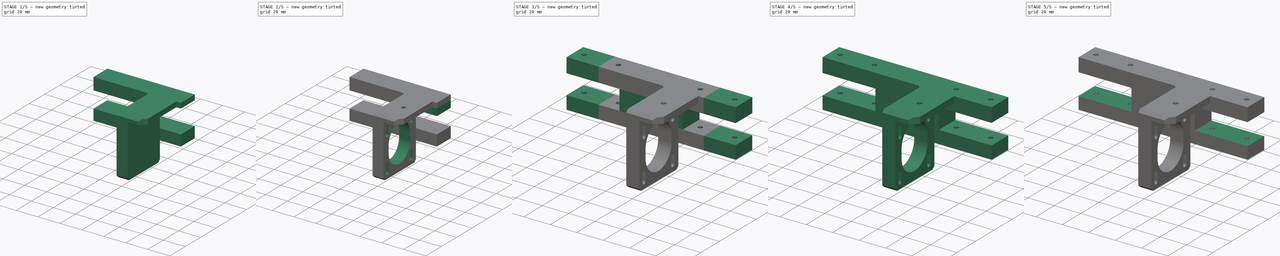
[diagram: build sequence overview — one tinted view per stage of 5, left to right]
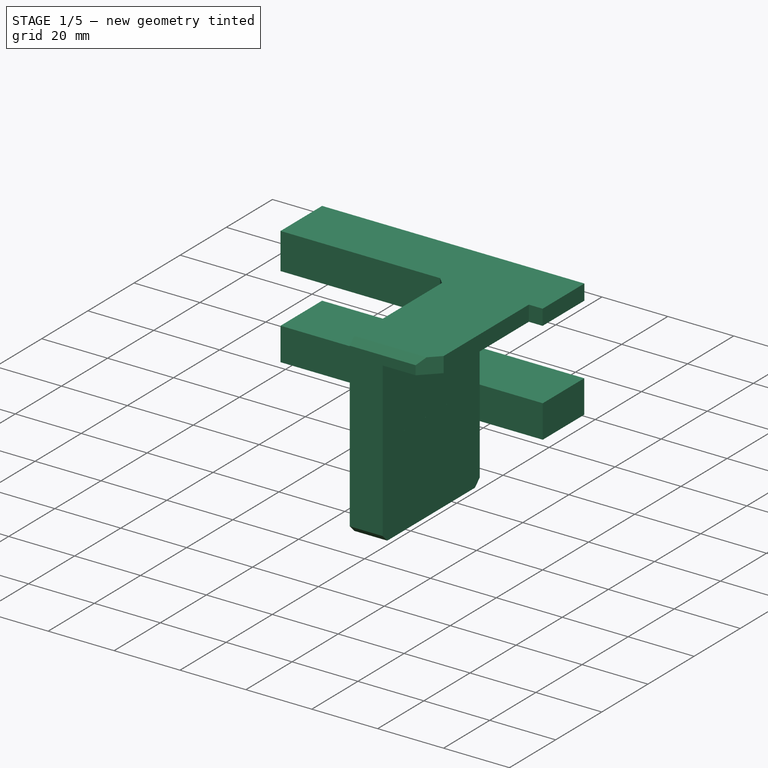
[diagram: stage 1 of 5 — iso view after this stage's code; geometry added in this stage tinted green]
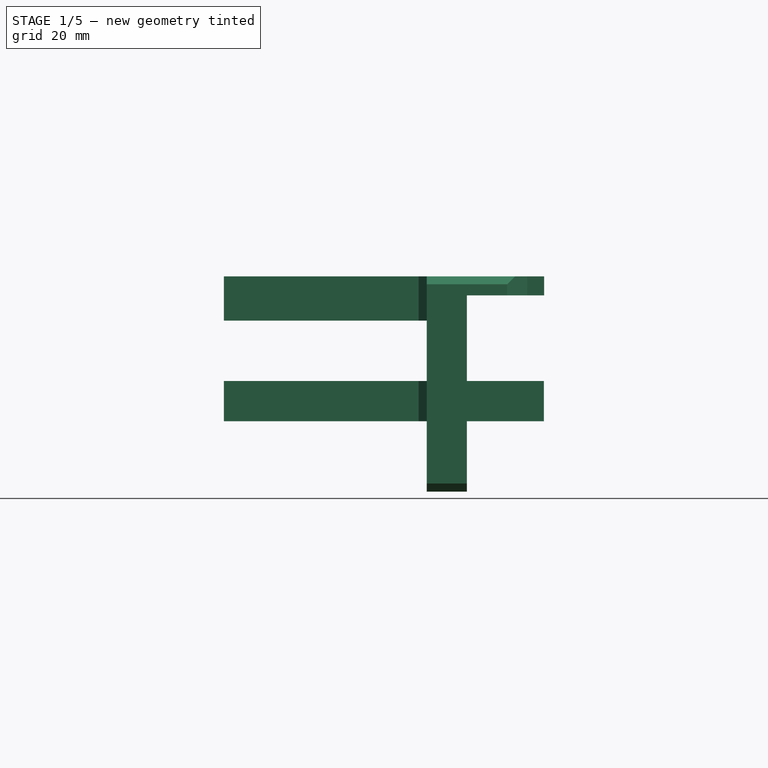
[diagram: stage 1 of 5 — front view after this stage's code; geometry added in this stage tinted green]
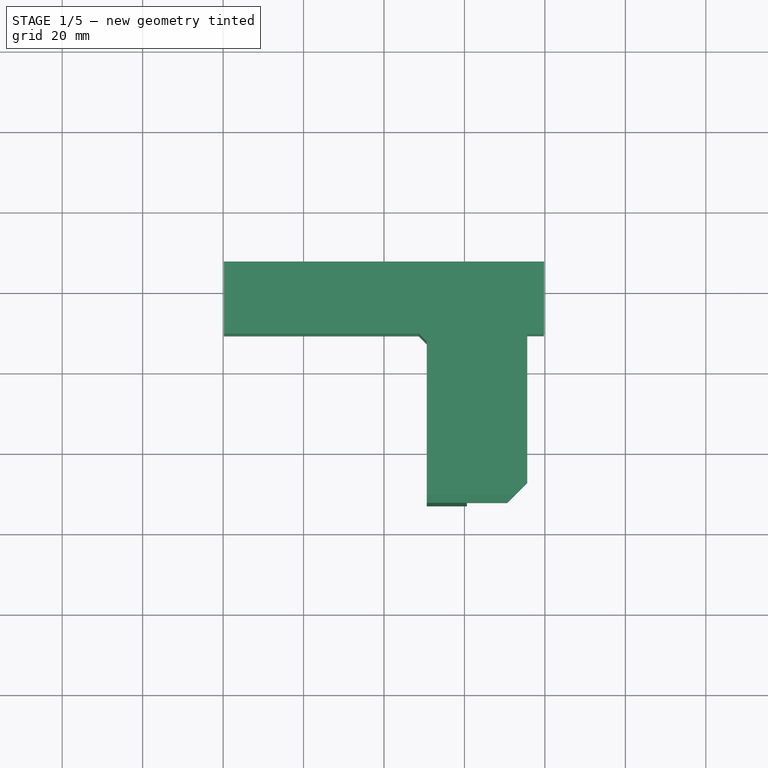
[diagram: stage 1 of 5 — top view after this stage's code; geometry added in this stage tinted green]
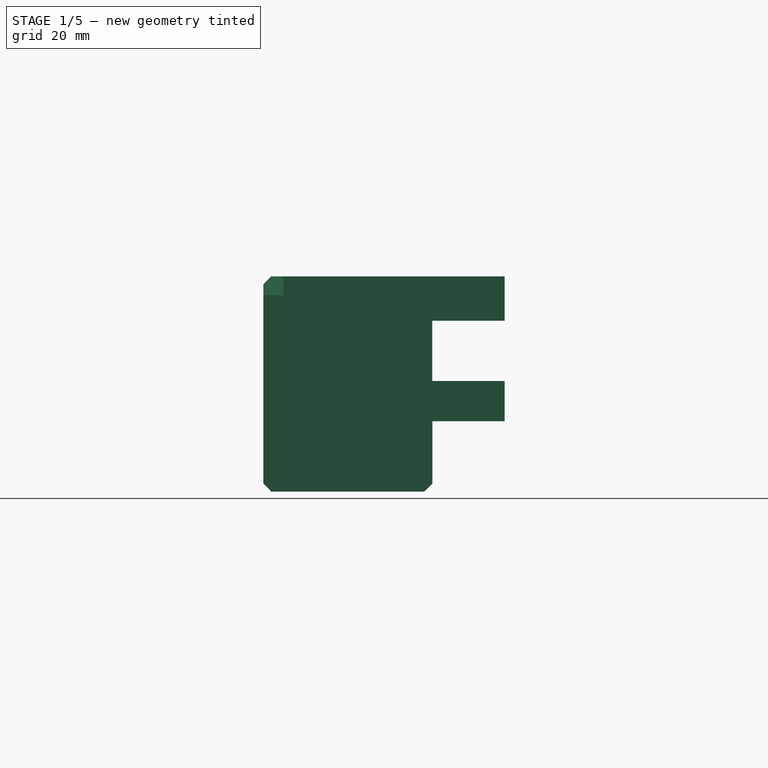
[diagram: stage 1 of 5 — right view after this stage's code; geometry added in this stage tinted green]
FCSTD DOCUMENT  (FreeCAD 2024.1R35694 (Git))
Label: Rear_Lower_brace
License: All rights reserved
LicenseURL: http://en.wikipedia.org/wiki/All_rights_reserved
objects: PartDesign::Pocket×22, PartDesign::Pad×13, Sketcher::SketchObject×8, PartDesign::Body×1
note: 79 computed .brp shape members not serialized (recipe doc carries the construction recipe); baked Part::Feature solids carry a one-line shape summary decoded from their .brp

FEATURE [Sketcher::SketchObject] Sketch
  AttachmentOffset = pos=(0,0,-164) rot=(0,0,1;0rad)
  FullyConstrained = false
  MapMode = 5
  Placement = pos=(0,0,-164) rot=(0,0,1;0rad)
  Support = -> [XY_Plane]
  sketch-geometry (10):
    g0: LineSegment StartX=-39.8001 StartY=187 StartZ=0 EndX=39.7995 EndY=187 EndZ=0
    g1: LineSegment StartX=39.7995 StartY=187 StartZ=0 EndX=39.7995 EndY=168.901 EndZ=0
    g2: LineSegment StartX=-39.8001 StartY=169 StartZ=0 EndX=-39.8001 EndY=187 EndZ=0
    g3: LineSegment StartX=8.61803 StartY=169 StartZ=0 EndX=-39.8001 EndY=169 EndZ=0
    g4: LineSegment StartX=39.7995 StartY=168.901 StartZ=0 EndX=35.6181 EndY=168.901 EndZ=0
    g5: LineSegment StartX=8.61803 StartY=169 StartZ=0 EndX=10.6181 EndY=167 EndZ=0
    g6: LineSegment StartX=10.6181 StartY=167 StartZ=0 EndX=10.6181 EndY=126.992 EndZ=0
    g7: LineSegment StartX=10.6181 StartY=126.992 StartZ=0 EndX=30.618 EndY=126.992 EndZ=0
    g8: LineSegment StartX=30.618 StartY=126.992 StartZ=0 EndX=35.6181 EndY=131.992 EndZ=0
    g9: LineSegment StartX=35.6181 StartY=131.992 StartZ=0 EndX=35.6181 EndY=168.901 EndZ=0
  constraints (18):
    c: Coincident(g0,g1)
    c: Coincident(g1,g4)
    c: Coincident(g3,g2)
    c: Coincident(g2,g0)
    c: Horizontal(g0)
    c: Vertical(g1)
    c: Vertical(g2)
    c: Horizontal(g3)
    c: Horizontal(g4)
    c: Coincident(g3,g5)
    c: Coincident(g5,g6)
    c: Vertical(g6)
    c: Coincident(g6,g7)
    c: Horizontal(g7)
    c: Coincident(g7,g8)
    c: Coincident(g8,g9)
    c: Coincident(g9,g4)
    c: Vertical(g9)
FEATURE [Sketcher::SketchObject] Sketch001
  FullyConstrained = false
  MapMode = 5
  Placement = pos=(0,0,0) rot=(1,0,0;1.5708rad)
  Support = -> [XZ_Plane]
  sketch-geometry (20):
    g0: LineSegment StartX=-104.456 StartY=-109.007 StartZ=0 EndX=119.045 EndY=-109.007 EndZ=0
    g1: LineSegment StartX=119.045 StartY=-109.007 StartZ=0 EndX=119.045 EndY=-262.207 EndZ=0
    g2: LineSegment StartX=119.045 StartY=-262.207 StartZ=0 EndX=-104.456 EndY=-262.207 EndZ=0
    g3: LineSegment StartX=-104.456 StartY=-262.207 StartZ=0 EndX=-104.456 EndY=-109.007 EndZ=0
    g4: LineSegment StartX=-39.8749 StartY=-163.95 StartZ=0 EndX=39.8 EndY=-163.95 EndZ=0
    g5: LineSegment StartX=10.6203 StartY=-175.003 StartZ=0 EndX=-39.8749 EndY=-175.003 EndZ=0
    g6: LineSegment StartX=-39.8749 StartY=-175.003 StartZ=0 EndX=-39.8749 EndY=-163.95 EndZ=0
    g7: LineSegment StartX=39.8 StartY=-163.95 StartZ=0 EndX=39.8 EndY=-175.004 EndZ=0
    g8: LineSegment StartX=39.8 StartY=-175.004 StartZ=0 EndX=20.6157 EndY=-175.004 EndZ=0
    g9: LineSegment StartX=20.6157 StartY=-175.004 StartZ=0 EndX=20.6157 EndY=-189.981 EndZ=0
    g10: LineSegment StartX=20.6157 StartY=-189.981 StartZ=0 EndX=39.7561 EndY=-189.981 EndZ=0
    g11: LineSegment StartX=39.7561 StartY=-189.981 StartZ=0 EndX=39.7561 EndY=-200.047 EndZ=0
    g12: LineSegment StartX=39.7561 StartY=-200.047 StartZ=0 EndX=20.6169 EndY=-200.047 EndZ=0
    g13: LineSegment StartX=20.6169 StartY=-200.047 StartZ=0 EndX=20.6169 EndY=-217.501 EndZ=0
    g14: LineSegment StartX=20.6169 StartY=-217.501 StartZ=0 EndX=10.6183 EndY=-217.501 EndZ=0
    g15: LineSegment StartX=10.6183 StartY=-217.501 StartZ=0 EndX=10.6183 EndY=-200 EndZ=0
    g16: LineSegment StartX=10.6183 StartY=-200 StartZ=0 EndX=-39.8 EndY=-200 EndZ=0
    g17: LineSegment StartX=-39.8 StartY=-200 StartZ=0 EndX=-39.8 EndY=-190 EndZ=0
    g18: LineSegment StartX=-39.8 StartY=-190 StartZ=0 EndX=10.6203 EndY=-190 EndZ=0
    g19: LineSegment StartX=10.6203 StartY=-175.003 StartZ=0 EndX=10.6203 EndY=-190 EndZ=0
  constraints (40):
    c: Coincident(g0,g1)
    c: Coincident(g1,g2)
    c: Coincident(g2,g3)
    c: Coincident(g3,g0)
    c: Horizontal(g0)
    c: Horizontal(g2)
    c: Vertical(g1)
    c: Vertical(g3)
    c: Coincident(g5,g6)
    c: Coincident(g6,g4)
    c: Horizontal(g4)
    c: Horizontal(g5)
    c: Vertical(g6)
    c: Coincident(g4,g7)
    c: Vertical(g7)
    c: Coincident(g7,g8)
    c: Horizontal(g8)
    c: Coincident(g8,g9)
    c: Vertical(g9)
    c: Coincident(g9,g10)
    c: Horizontal(g10)
    c: Coincident(g10,g11)
    c: Vertical(g11)
    c: Coincident(g11,g12)
    c: Horizontal(g12)
    c: Coincident(g12,g13)
    c: Vertical(g13)
    c: Coincident(g13,g14)
    c: Horizontal(g14)
    c: Coincident(g14,g15)
    c: Vertical(g15)
    c: Coincident(g16,g17)
    c: Coincident(g17,g18)
    c: Horizontal(g16)
    c: Horizontal(g18)
    c: Vertical(g17)
    c: Coincident(g16,g15)
    c: Coincident(g19,g5)
    c: Coincident(g19,g18)
    c: Vertical(g19)
FEATURE [PartDesign::Pad] Pad
  Direction = (0,0,1)
  Length = 53.55
  Length2 = 10
  Profile = -> Sketch
  ReferenceAxis = -> Sketch [N_Axis]
  Reversed = true
  Type = 0
FEATURE [PartDesign::Pocket] Pocket
  BaseFeature = -> Pad
  Direction = (0,1,-2e-16)
  Length = 5
  Length2 = 5
  Profile = -> Sketch001
  ReferenceAxis = -> Sketch001 [N_Axis]
  Type = 1
FEATURE [Sketcher::SketchObject] Sketch002
  AttachmentOffset = pos=(0,0,54) rot=(0,0,1;0rad)
  FullyConstrained = false
  MapMode = 5
  Placement = pos=(54,0,0) rot=(0.57735,0.57735,0.57735;2.0944rad)
  Support = -> [YZ_Plane]
  sketch-geometry (17):
    g0: LineSegment StartX=166.994 StartY=-217.511 StartZ=0 EndX=128.999 EndY=-217.511 EndZ=0
    g1: LineSegment StartX=126.993 StartY=-215.496 StartZ=0 EndX=126.993 EndY=-165.948 EndZ=0
    g2: LineSegment StartX=128.997 StartY=-163.943 StartZ=0 EndX=126.993 EndY=-165.948 EndZ=0
    g3: LineSegment StartX=126.993 StartY=-215.496 StartZ=0 EndX=128.999 EndY=-217.511 EndZ=0
    g4: LineSegment StartX=169.035 StartY=-215.488 StartZ=0 EndX=166.994 EndY=-217.511 EndZ=0
    g5: LineSegment StartX=169 StartY=-175.021 StartZ=0 EndX=187.017 EndY=-175.021 EndZ=0
    g6: LineSegment StartX=187.017 StartY=-175.021 StartZ=0 EndX=187.017 EndY=-163.943 EndZ=0
    g7: LineSegment StartX=128.997 StartY=-163.943 StartZ=0 EndX=187.017 EndY=-163.943 EndZ=0
    g8: LineSegment StartX=169.035 StartY=-215.488 StartZ=0 EndX=169.035 EndY=-200.001 EndZ=0
    g9: LineSegment StartX=169.035 StartY=-200.001 StartZ=0 EndX=187.001 EndY=-200.001 EndZ=0
    g10: LineSegment StartX=187.001 StartY=-200.001 StartZ=0 EndX=187.001 EndY=-189.998 EndZ=0
    g11: LineSegment StartX=187.001 StartY=-189.998 StartZ=0 EndX=169 EndY=-189.998 EndZ=0
    g12: LineSegment StartX=169 StartY=-189.998 StartZ=0 EndX=169 EndY=-175.021 EndZ=0
    g13: LineSegment StartX=74.8447 StartY=-127.155 StartZ=0 EndX=238.973 EndY=-127.155 EndZ=0
    g14: LineSegment StartX=238.973 StartY=-127.155 StartZ=0 EndX=238.973 EndY=-249.425 EndZ=0
    g15: LineSegment StartX=238.973 StartY=-249.425 StartZ=0 EndX=74.8447 EndY=-249.425 EndZ=0
    g16: LineSegment StartX=74.8447 StartY=-249.425 StartZ=0 EndX=74.8447 EndY=-127.155 EndZ=0
  constraints (31):
    c: Horizontal(g0)
    c: Vertical(g1)
    c: Coincident(g2,g1)
    c: Coincident(g3,g1)
    c: Coincident(g3,g0)
    c: Coincident(g4,g0)
    c: Coincident(g5,g6)
    c: Horizontal(g5)
    c: Vertical(g6)
    c: Coincident(g7,g2)
    c: Coincident(g7,g6)
    c: Horizontal(g7)
    c: Coincident(g4,g8)
    c: Vertical(g8)
    c: Coincident(g8,g9)
    c: Horizontal(g9)
    c: Coincident(g9,g10)
    c: Vertical(g10)
    c: Coincident(g10,g11)
    c: Horizontal(g11)
    c: Coincident(g11,g12)
    c: Coincident(g12,g5)
    c: Vertical(g12)
    c: Coincident(g13,g14)
    c: Coincident(g14,g15)
    c: Coincident(g15,g16)
    c: Coincident(g16,g13)
    c: Horizontal(g13)
    c: Horizontal(g15)
    c: Vertical(g14)
    c: Vertical(g16)
FEATURE [PartDesign::Pocket] Pocket001
  BaseFeature = -> Pocket
  Direction = (-1,2e-16,-3e-16)
  Length = 56
  Length2 = 5
  Profile = -> Sketch002
  ReferenceAxis = -> Sketch002 [N_Axis]
  Type = 0
FEATURE [PartDesign::Pocket] Pocket002
  BaseFeature = -> Pocket001
  Direction = (0,2e-16,1)
  Length = 6.3
  Length2 = 5
  Profile = -> Pocket001 [Face4]
  Type = 0
FEATURE [PartDesign::Pocket] Pocket003
  BaseFeature = -> Pocket002
  Direction = (-1,0,0)
  Length = 14.8
  Length2 = 5
  Offset = 7
  Profile = -> Pocket002 [Face31]
  Type = 0
FEATURE [PartDesign::Pocket] Pocket004
  BaseFeature = -> Pocket003
  Direction = (0,-1,0)
  Length = 5
  Length2 = 5
  Profile = -> Pocket003 [Face31]
  Type = 0
FEATURE [PartDesign::Pocket] Pocket005
  BaseFeature = -> Pocket004
  Direction = (0,2e-16,1)
  Length = 16
  Length2 = 5
  Profile = -> Pocket004 [Face30]
  Type = 0
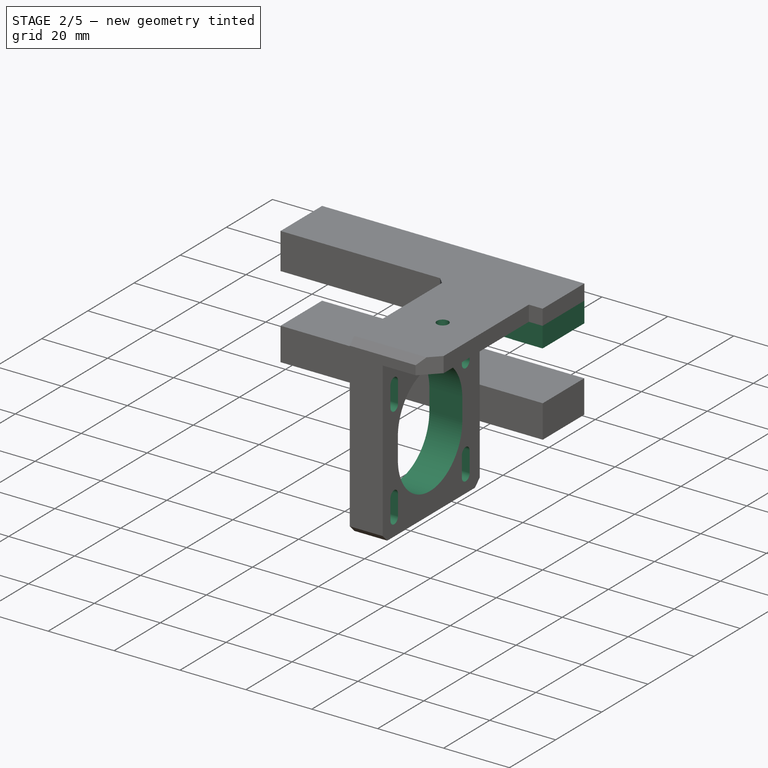
[diagram: stage 2 of 5 — iso view after this stage's code; geometry added in this stage tinted green]
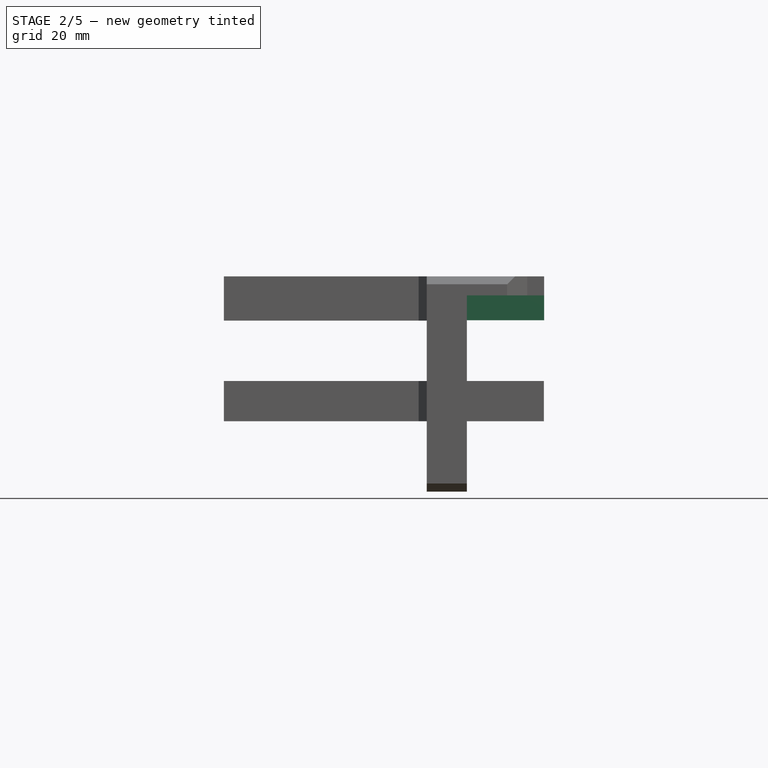
[diagram: stage 2 of 5 — front view after this stage's code; geometry added in this stage tinted green]
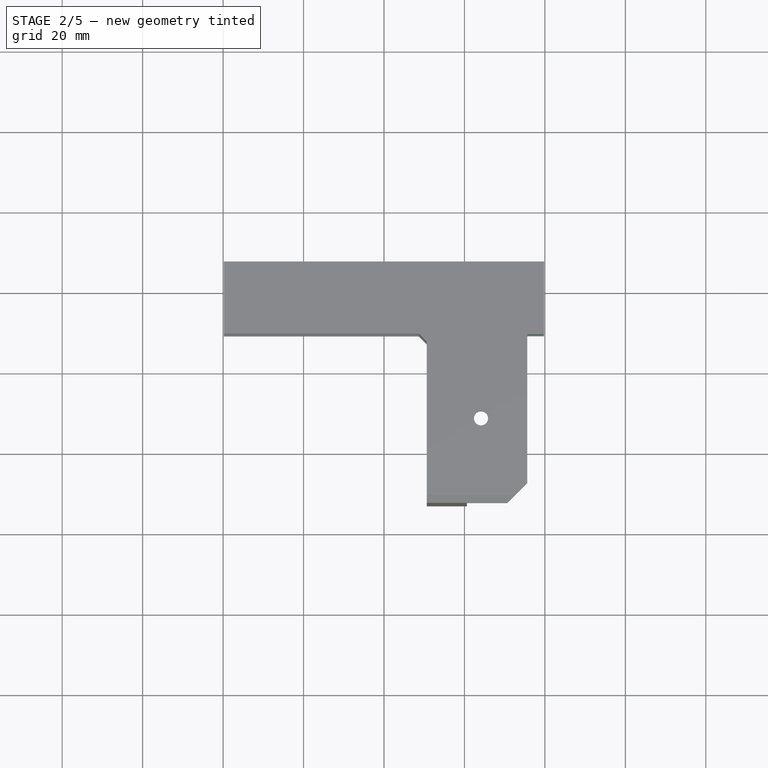
[diagram: stage 2 of 5 — top view after this stage's code; geometry added in this stage tinted green]
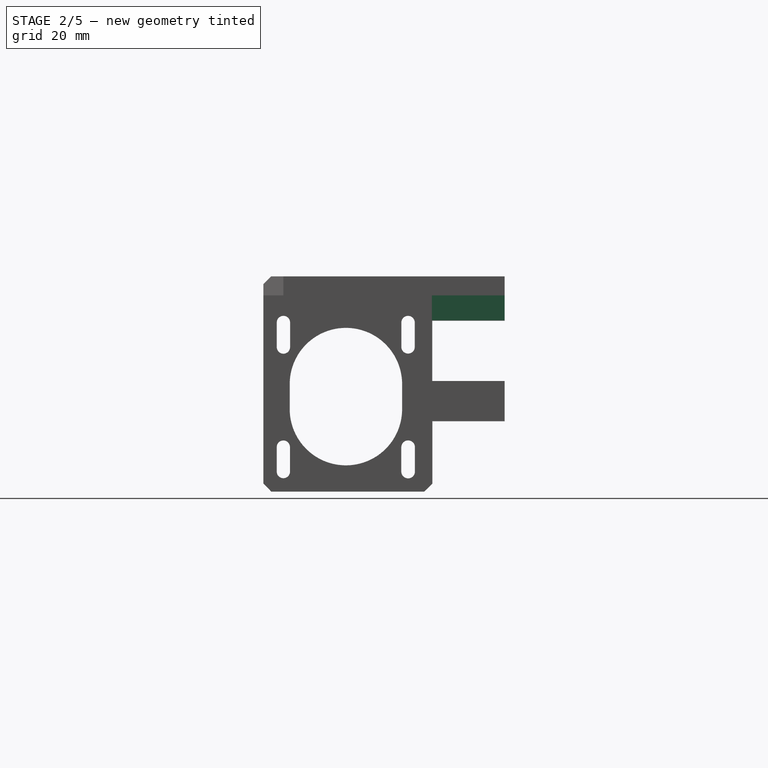
[diagram: stage 2 of 5 — right view after this stage's code; geometry added in this stage tinted green]
FEATURE [Sketcher::SketchObject] Sketch003
  FullyConstrained = false
  MapMode = 5
  Support = -> [XY_Plane]
  sketch-geometry (1):
    g0: Circle CenterX=24.1143 CenterY=147.997 CenterZ=0 NormalX=0 NormalY=0 NormalZ=1 AngleXU=0 Radius=1.75079
FEATURE [PartDesign::Pocket] Pocket006
  BaseFeature = -> Pocket005
  Direction = (0,0,-1)
  Length = 5
  Length2 = 5
  Profile = -> Sketch003
  ReferenceAxis = -> Sketch003 [N_Axis]
  Type = 1
FEATURE [Sketcher::SketchObject] Sketch004
  AttachmentOffset = pos=(0,0,-168.72) rot=(0,0,1;0rad)
  FullyConstrained = false
  MapMode = 5
  Placement = pos=(0,0,-168.72) rot=(0,0,1;0rad)
  Support = -> [XY_Plane]
  sketch-geometry (6):
    g0: LineSegment StartX=21.3174 StartY=146.37 StartZ=0 EndX=21.3174 EndY=149.618 EndZ=0
    g1: LineSegment StartX=21.3174 StartY=149.618 StartZ=0 EndX=24.1188 EndY=151.229 EndZ=0
    g2: LineSegment StartX=24.1188 StartY=151.229 StartZ=0 EndX=26.9207 EndY=149.611 EndZ=0
    g3: LineSegment StartX=26.9207 StartY=149.611 StartZ=0 EndX=26.9207 EndY=146.381 EndZ=0
    g4: LineSegment StartX=26.9207 StartY=146.381 StartZ=0 EndX=24.1183 EndY=144.763 EndZ=0
    g5: LineSegment StartX=24.1183 StartY=144.763 StartZ=0 EndX=21.3174 EndY=146.37 EndZ=0
  constraints (8):
    c: Vertical(g0)
    c: Coincident(g0,g1)
    c: Coincident(g1,g2)
    c: Coincident(g2,g3)
    c: Vertical(g3)
    c: Coincident(g3,g4)
    c: Coincident(g4,g5)
    c: Coincident(g5,g0)
FEATURE [PartDesign::Pocket] Pocket007
  BaseFeature = -> Pocket006
  Direction = (0,0,-1)
  Length = 2.2
  Length2 = 5
  Profile = -> Sketch004
  ReferenceAxis = -> Sketch004 [N_Axis]
  Reversed = true
  Type = 0
FEATURE [Sketcher::SketchObject] Sketch005
  FullyConstrained = false
  MapMode = 5
  Placement = pos=(0,0,0) rot=(0.57735,0.57735,0.57735;2.0944rad)
  Support = -> [YZ_Plane]
  sketch-geometry (20):
    g0: ArcOfCircle CenterX=131.995 CenterY=-175.456 CenterZ=0 NormalX=0 NormalY=0 NormalZ=1 AngleXU=0 Radius=1.65384 StartAngle=4.2e-15 EndAngle=3.14159
    g1: ArcOfCircle CenterX=131.995 CenterY=-181.568 CenterZ=0 NormalX=0 NormalY=0 NormalZ=1 AngleXU=0 Radius=1.65384 StartAngle=3.14159 EndAngle=6.28319
    g2: LineSegment StartX=130.341 StartY=-175.456 StartZ=0 EndX=130.341 EndY=-181.568 EndZ=0
    g3: LineSegment StartX=133.649 StartY=-181.568 StartZ=0 EndX=133.649 EndY=-175.456 EndZ=0
    g4: ArcOfCircle CenterX=162.975 CenterY=-175.48 CenterZ=0 NormalX=0 NormalY=0 NormalZ=1 AngleXU=0 Radius=1.66848 StartAngle=4.1e-15 EndAngle=3.14159
    g5: ArcOfCircle CenterX=162.975 CenterY=-181.519 CenterZ=0 NormalX=0 NormalY=0 NormalZ=1 AngleXU=0 Radius=1.66848 StartAngle=3.14159 EndAngle=6.28319
    g6: LineSegment StartX=161.307 StartY=-175.48 StartZ=0 EndX=161.307 EndY=-181.519 EndZ=0
    g7: LineSegment StartX=164.644 StartY=-181.519 StartZ=0 EndX=164.644 EndY=-175.48 EndZ=0
    g8: ArcOfCircle CenterX=131.979 CenterY=-206.435 CenterZ=0 NormalX=0 NormalY=0 NormalZ=1 AngleXU=0 Radius=1.64378 StartAngle=0 EndAngle=3.14159
    g9: ArcOfCircle CenterX=131.979 CenterY=-212.53 CenterZ=0 NormalX=0 NormalY=0 NormalZ=1 AngleXU=0 Radius=1.64378 StartAngle=3.14159 EndAngle=6.28319
    g10: LineSegment StartX=130.336 StartY=-206.435 StartZ=0 EndX=130.336 EndY=-212.53 EndZ=0
    g11: LineSegment StartX=133.623 StartY=-212.53 StartZ=0 EndX=133.623 EndY=-206.435 EndZ=0
    g12: ArcOfCircle CenterX=162.991 CenterY=-206.473 CenterZ=0 NormalX=0 NormalY=0 NormalZ=1 AngleXU=0 Radius=1.69394 StartAngle=7.3e-15 EndAngle=3.14159
    g13: ArcOfCircle CenterX=162.991 CenterY=-212.517 CenterZ=0 NormalX=0 NormalY=0 NormalZ=1 AngleXU=0 Radius=1.69394 StartAngle=3.14159 EndAngle=6.28319
    g14: LineSegment StartX=161.297 StartY=-206.473 StartZ=0 EndX=161.297 EndY=-212.517 EndZ=0
    g15: LineSegment StartX=164.685 StartY=-212.517 StartZ=0 EndX=164.685 EndY=-206.473 EndZ=0
    g16: ArcOfCircle CenterX=147.527 CenterY=-190.771 CenterZ=0 NormalX=0 NormalY=0 NormalZ=1 AngleXU=0 Radius=13.9736 StartAngle=0 EndAngle=3.14159
    g17: ArcOfCircle CenterX=147.527 CenterY=-197 CenterZ=0 NormalX=0 NormalY=0 NormalZ=1 AngleXU=0 Radius=13.9736 StartAngle=3.14159 EndAngle=6.28319
    g18: LineSegment StartX=133.554 StartY=-190.771 StartZ=0 EndX=133.554 EndY=-197 EndZ=0
    g19: LineSegment StartX=161.501 StartY=-197 StartZ=0 EndX=161.501 EndY=-190.771 EndZ=0
  constraints (30):
    c: Tangent(g0,g2) = -1.5708
    c: Tangent(g2,g1) = -1.5708
    c: Tangent(g1,g3) = -1.5708
    c: Tangent(g3,g0) = -1.5708
    c: Equal(g0,g1)
    c: Vertical(g2)
    c: Tangent(g4,g6) = -1.5708
    c: Tangent(g6,g5) = -1.5708
    c: Tangent(g5,g7) = -1.5708
    c: Tangent(g7,g4) = -1.5708
    c: Equal(g4,g5)
    c: Vertical(g6)
    c: Tangent(g8,g10) = -1.5708
    c: Tangent(g10,g9) = -1.5708
    c: Tangent(g9,g11) = -1.5708
    c: Tangent(g11,g8) = -1.5708
    c: Equal(g8,g9)
    c: Vertical(g10)
    c: Tangent(g12,g14) = -1.5708
    c: Tangent(g14,g13) = -1.5708
    c: Tangent(g13,g15) = -1.5708
    c: Tangent(g15,g12) = -1.5708
    c: Equal(g12,g13)
    c: Vertical(g14)
    c: Tangent(g16,g18) = -1.5708
    c: Tangent(g18,g17) = -1.5708
    c: Tangent(g17,g19) = -1.5708
    c: Tangent(g19,g16) = -1.5708
    c: Equal(g16,g17)
    c: Vertical(g18)
FEATURE [PartDesign::Pocket] Pocket008
  BaseFeature = -> Pocket007
  Direction = (-1,2e-16,-3e-16)
  Length = 5
  Length2 = 5
  Profile = -> Sketch005
  ReferenceAxis = -> Sketch005 [N_Axis]
  Reversed = true
  Type = 1
FEATURE [PartDesign::Pad] Pad001
  BaseFeature = -> Pocket008
  Direction = (0,-2e-16,-1)
  Length = 6.2
  Length2 = 10
  Profile = -> Pocket008 [Face4]
  Type = 0
FEATURE [PartDesign::Pocket] Pocket005002
  BaseFeature = -> Pad001
  Direction = (-1,0,0)
  Length = 14
  Length2 = 5
  Profile = -> Pad001 [Face43]
  Type = 0
FEATURE [PartDesign::Pocket] Pocket005003
  BaseFeature = -> Pocket005002
  Direction = (2e-16,1,-2e-16)
  Length = 42
  Length2 = 5
  Profile = -> Pocket005002 [Face55]
  Type = 0
FEATURE [PartDesign::Pocket] Pocket005004
  BaseFeature = -> Pocket005003
  Direction = (0,-1,2e-16)
  Length = 5
  Length2 = 5
  Profile = -> Pocket005003 [Face68]
  Type = 0
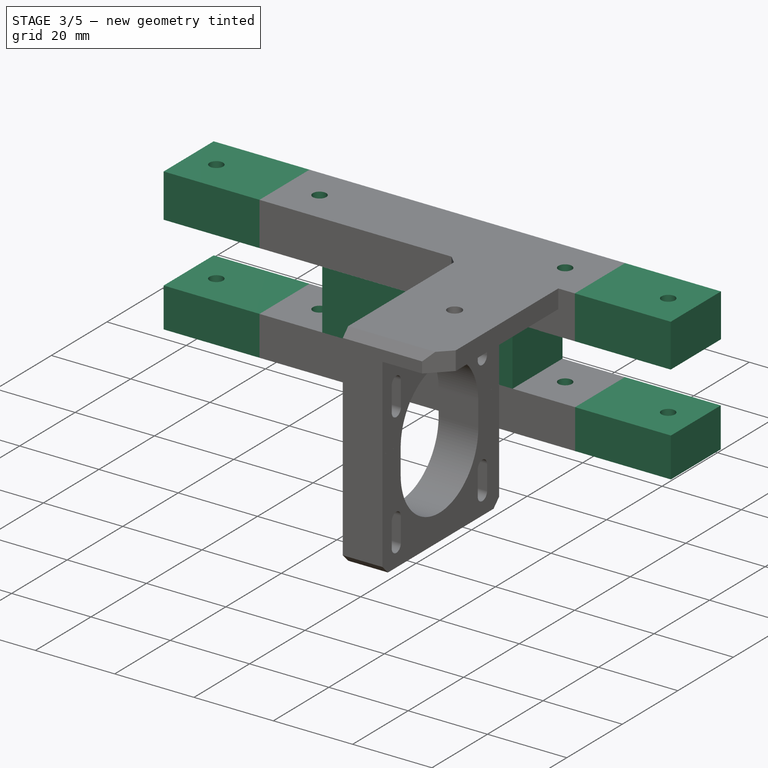
[diagram: stage 3 of 5 — iso view after this stage's code; geometry added in this stage tinted green]
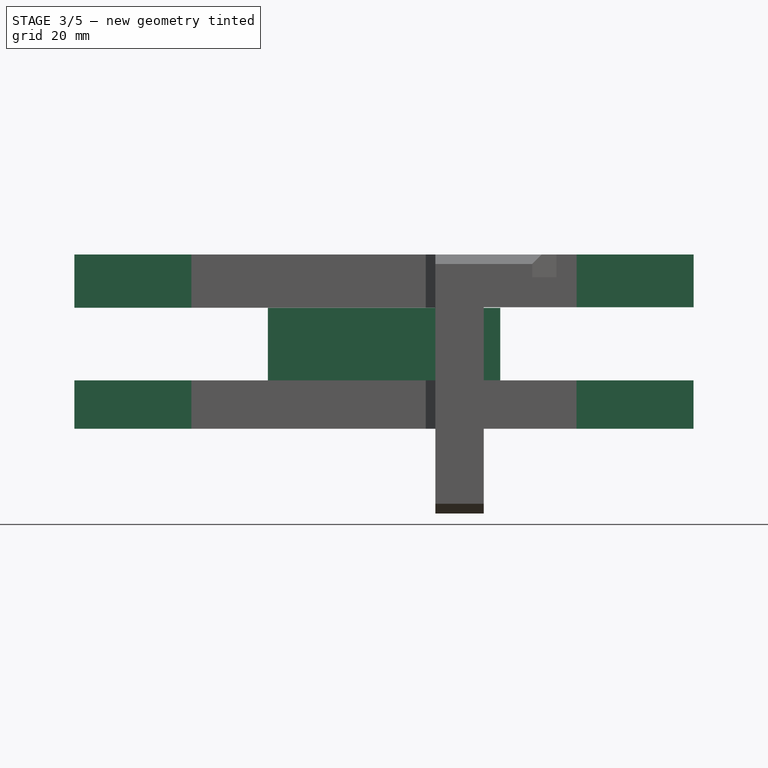
[diagram: stage 3 of 5 — front view after this stage's code; geometry added in this stage tinted green]
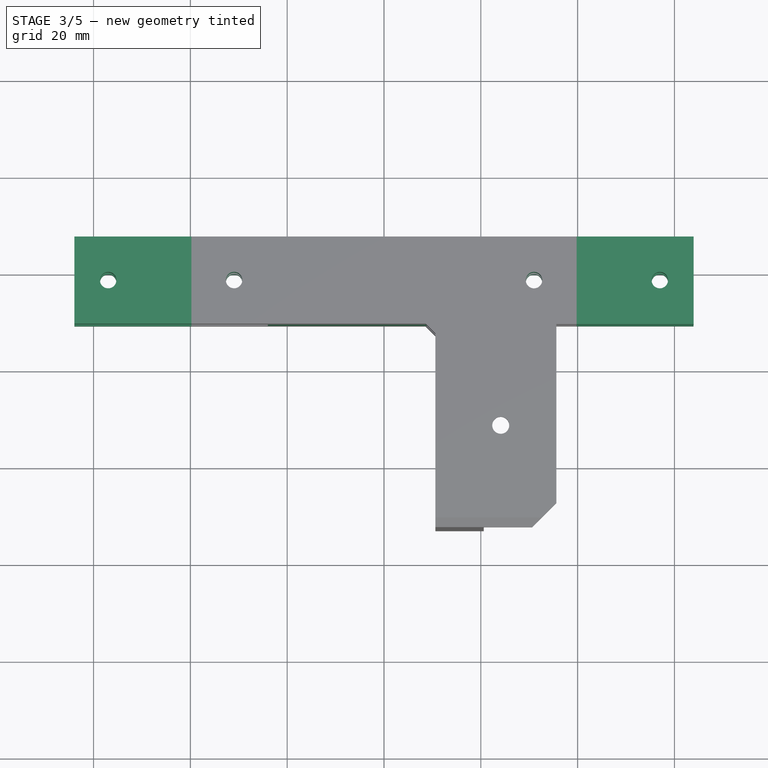
[diagram: stage 3 of 5 — top view after this stage's code; geometry added in this stage tinted green]
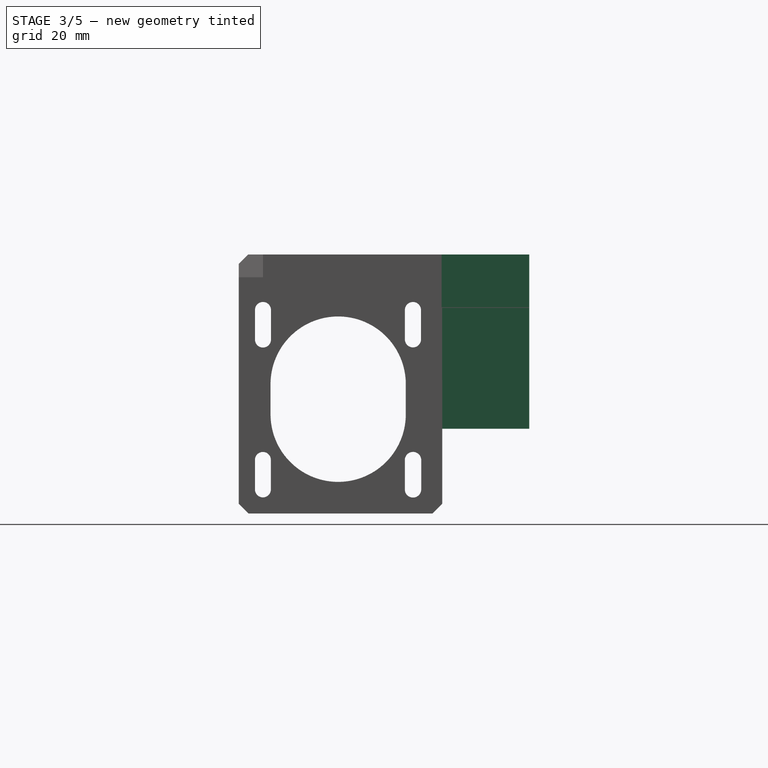
[diagram: stage 3 of 5 — right view after this stage's code; geometry added in this stage tinted green]
FEATURE [PartDesign::Pad] Pad002
  BaseFeature = -> Pocket005004
  Direction = (-1,0,0)
  Length = 24.17
  Length2 = 10
  Profile = -> Pocket005004 [Face10,Face62]
  Type = 0
FEATURE [PartDesign::Pad] Pad003
  BaseFeature = -> Pad002
  Direction = (1,0,0)
  Length = 24.17
  Length2 = 10
  Profile = -> Pad002 [Face20,Face3,Face68]
  Type = 0
FEATURE [PartDesign::Pad] Pad004
  BaseFeature = -> Pad003
  Direction = (3e-16,-2e-16,-1)
  Length = 14.98
  Length2 = 10
  Profile = -> Pad003 [Face7]
  Type = 0
FEATURE [PartDesign::Pad] Pad005
  BaseFeature = -> Pad004
  Direction = (1,0,3e-16)
  Length = 3.39
  Length2 = 10
  Profile = -> Pad004 [Face30]
  Type = 0
FEATURE [PartDesign::Pad] Pad006
  BaseFeature = -> Pad005
  Direction = (-1,0,-3e-16)
  Length = 34.6
  Length2 = 10
  Profile = -> Pad005 [Face43]
  Type = 0
FEATURE [Sketcher::SketchObject] Sketch006
  FullyConstrained = false
  MapMode = 5
  Support = -> [XY_Plane]
  sketch-geometry (4):
    g0: Circle CenterX=-56.9816 CenterY=177.999 CenterZ=0 NormalX=0 NormalY=0 NormalZ=1 AngleXU=0 Radius=1.69824
    g1: Circle CenterX=-30.9707 CenterY=178.009 CenterZ=0 NormalX=0 NormalY=0 NormalZ=1 AngleXU=0 Radius=1.6971
    g2: Circle CenterX=30.986 CenterY=177.997 CenterZ=0 NormalX=0 NormalY=0 NormalZ=1 AngleXU=0 Radius=1.70084
    g3: Circle CenterX=56.9777 CenterY=177.999 CenterZ=0 NormalX=0 NormalY=0 NormalZ=1 AngleXU=0 Radius=1.70084
FEATURE [Sketcher::SketchObject] Sketch007  label="nut_insert"
  AttachmentOffset = pos=(0,0,-200.01) rot=(0,0,1;0rad)
  FullyConstrained = false
  MapMode = 5
  Placement = pos=(0,0,-200.01) rot=(0,0,1;0rad)
  Support = -> [XY_Plane]
  sketch-geometry (28):
    g0: LineSegment StartX=-58.7275 StartY=180.702 StartZ=0 EndX=-60.1919 EndY=177.846 EndZ=0
    g1: LineSegment StartX=-60.1919 StartY=177.846 StartZ=0 EndX=-58.4502 EndY=175.149 EndZ=0
    g2: LineSegment StartX=-58.4502 StartY=175.149 StartZ=0 EndX=-55.2442 EndY=175.31 EndZ=0
    g3: LineSegment StartX=-55.2442 StartY=175.31 StartZ=0 EndX=-53.7799 EndY=178.166 EndZ=0
    g4: LineSegment StartX=-53.7799 StartY=178.166 StartZ=0 EndX=-55.5215 EndY=180.863 EndZ=0
    g5: LineSegment StartX=-55.5215 StartY=180.863 StartZ=0 EndX=-58.7275 EndY=180.702 EndZ=0
    g6: Circle CenterX=-56.9859 CenterY=178.006 CenterZ=0 NormalX=0 NormalY=0 NormalZ=1 AngleXU=0 Radius=3.21
    g7: LineSegment StartX=-32.5773 StartY=180.794 StartZ=0 EndX=-34.1907 EndY=178.018 EndZ=0
    g8: LineSegment StartX=-34.1907 StartY=178.018 StartZ=0 EndX=-32.5941 EndY=175.234 EndZ=0
    g9: LineSegment StartX=-32.5941 StartY=175.234 StartZ=0 EndX=-29.3842 EndY=175.224 EndZ=0
    g10: LineSegment StartX=-29.3842 StartY=175.224 StartZ=0 EndX=-27.7707 EndY=177.999 EndZ=0
    g11: LineSegment StartX=-27.7707 StartY=177.999 StartZ=0 EndX=-29.3673 EndY=180.784 EndZ=0
    g12: LineSegment StartX=-29.3673 StartY=180.784 StartZ=0 EndX=-32.5773 EndY=180.794 EndZ=0
    g13: Circle CenterX=-30.9807 CenterY=178.009 CenterZ=0 NormalX=0 NormalY=0 NormalZ=1 AngleXU=0 Radius=3.21
    g14: LineSegment StartX=28.9535 StartY=180.447 StartZ=0 EndX=27.834 EndY=177.439 EndZ=0
    g15: LineSegment StartX=27.834 StartY=177.439 StartZ=0 EndX=29.8797 EndY=174.965 EndZ=0
    g16: LineSegment StartX=29.8797 StartY=174.965 StartZ=0 EndX=33.0449 EndY=175.5 EndZ=0
    g17: LineSegment StartX=33.0449 StartY=175.5 StartZ=0 EndX=34.1643 EndY=178.508 EndZ=0
    g18: LineSegment StartX=34.1643 StartY=178.508 StartZ=0 EndX=32.1186 EndY=180.982 EndZ=0
    g19: LineSegment StartX=32.1186 StartY=180.982 StartZ=0 EndX=28.9535 EndY=180.447 EndZ=0
    g20: Circle CenterX=30.9992 CenterY=177.974 CenterZ=0 NormalX=0 NormalY=0 NormalZ=1 AngleXU=0 Radius=3.21
    g21: LineSegment StartX=55.3029 StartY=180.73 StartZ=0 EndX=53.7756 EndY=177.914 EndZ=0
    g22: LineSegment StartX=53.7756 StartY=177.914 StartZ=0 EndX=55.4504 EndY=175.183 EndZ=0
    g23: LineSegment StartX=55.4504 StartY=175.183 StartZ=0 EndX=58.6525 EndY=175.269 EndZ=0
    g24: LineSegment StartX=58.6525 StartY=175.269 StartZ=0 EndX=60.1798 EndY=178.084 EndZ=0
    g25: LineSegment StartX=60.1798 StartY=178.084 StartZ=0 EndX=58.505 EndY=180.815 EndZ=0
    g26: LineSegment StartX=58.505 StartY=180.815 StartZ=0 EndX=55.3029 EndY=180.73 EndZ=0
    g27: Circle CenterX=56.9777 CenterY=177.999 CenterZ=0 NormalX=0 NormalY=0 NormalZ=1 AngleXU=0 Radius=3.20323
  constraints (52):
    c: Coincident(g0,g1)
    c: Coincident(g1,g2)
    c: Coincident(g2,g3)
    c: Coincident(g3,g4)
    c: Coincident(g4,g5)
    c: Coincident(g5,g0)
    c: Equal(g0, g1-g5) x5
    c: PointOnObject(g0,g6)
    c: PointOnObject(g1,g6)
    c: PointOnObject(g2,g6)
    c: PointOnObject(g3,g6)
    c: PointOnObject(g4,g6)
    c: PointOnObject(g5,g6)
    c: Coincident(g7,g8)
    c: Coincident(g8,g9)
    c: Coincident(g9,g10)
    c: Coincident(g10,g11)
    c: Coincident(g11,g12)
    c: Coincident(g12,g7)
    c: Equal(g7, g8-g12) x5
    c: PointOnObject(g7,g13)
    c: PointOnObject(g8,g13)
    c: PointOnObject(g9,g13)
    c: PointOnObject(g10,g13)
    c: PointOnObject(g11,g13)
    c: PointOnObject(g12,g13)
    c: Coincident(g14,g15)
    c: Coincident(g15,g16)
    c: Coincident(g16,g17)
    c: Coincident(g17,g18)
    c: Coincident(g18,g19)
    c: Coincident(g19,g14)
    c: Equal(g14, g15-g19) x5
    c: PointOnObject(g14,g20)
    c: PointOnObject(g15,g20)
    c: PointOnObject(g16,g20)
    c: PointOnObject(g17,g20)
    c: PointOnObject(g18,g20)
    c: PointOnObject(g19,g20)
    c: Coincident(g21,g22)
    c: Coincident(g22,g23)
    c: Coincident(g23,g24)
    c: Coincident(g24,g25)
    c: Coincident(g25,g26)
    c: Coincident(g26,g21)
    c: Equal(g21, g22-g26) x5
    c: PointOnObject(g21,g27)
    c: PointOnObject(g22,g27)
    c: PointOnObject(g23,g27)
    c: PointOnObject(g24,g27)
    c: PointOnObject(g25,g27)
    c: PointOnObject(g26,g27)
FEATURE [PartDesign::Pocket] Pocket005005
  BaseFeature = -> Pad006
  Direction = (0,0,-1)
  Length = 5
  Length2 = 5
  Profile = -> Sketch006
  ReferenceAxis = -> Sketch006 [N_Axis]
  Type = 1
FEATURE [PartDesign::Pocket] Pocket005006
  BaseFeature = -> Pocket005005
  Direction = (0,0,-1)
  Length = 2.5
  Length2 = 5
  Profile = -> Sketch007
  ReferenceAxis = -> Sketch007 [N_Axis]
  Reversed = true
  Type = 0
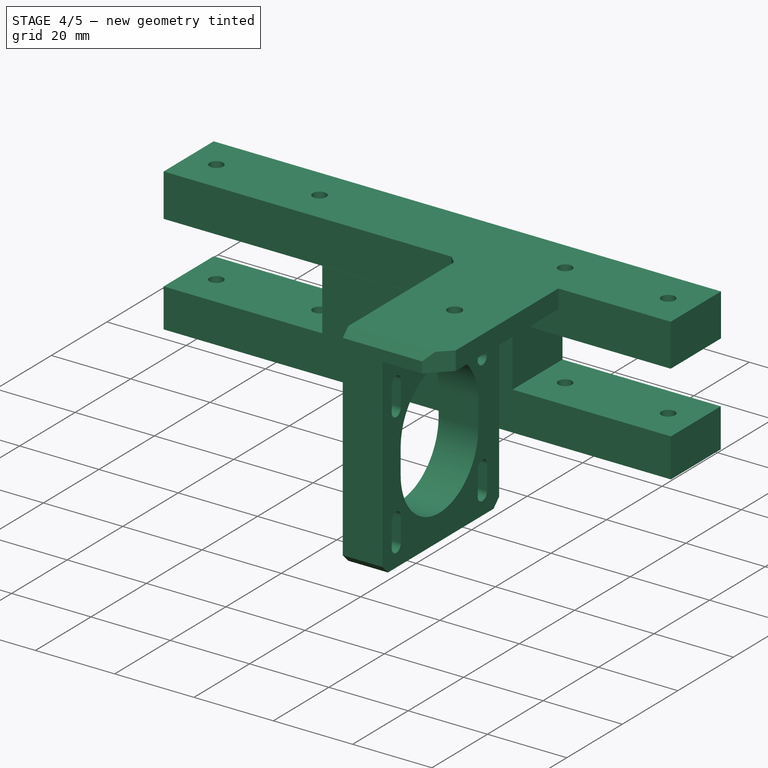
[diagram: stage 4 of 5 — iso view after this stage's code; geometry added in this stage tinted green]
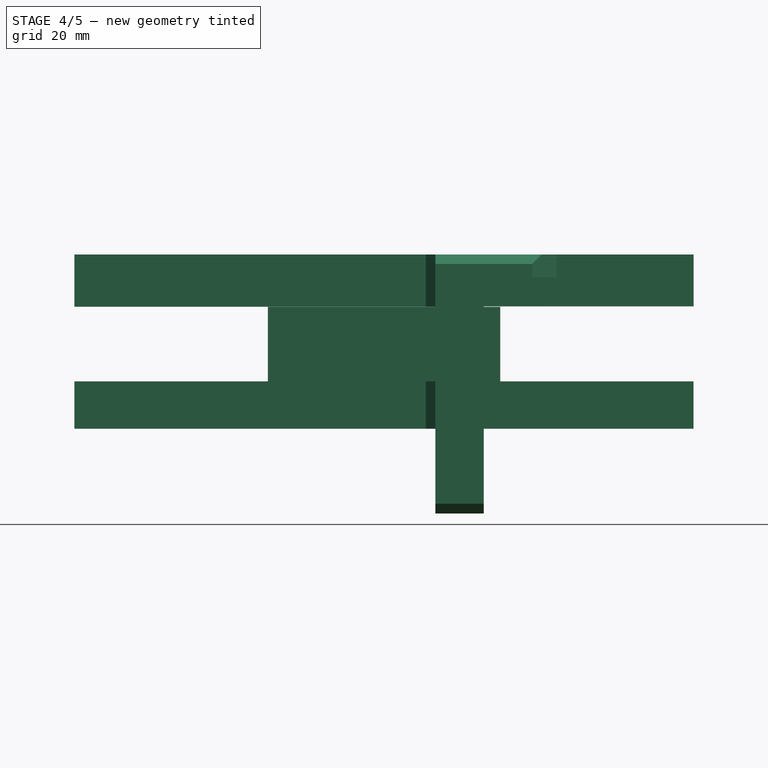
[diagram: stage 4 of 5 — front view after this stage's code; geometry added in this stage tinted green]
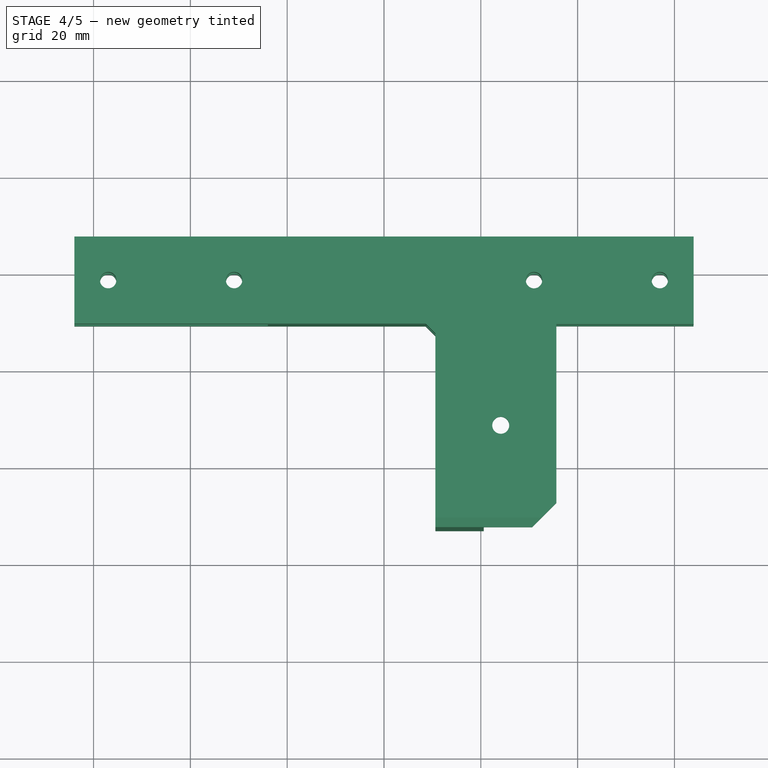
[diagram: stage 4 of 5 — top view after this stage's code; geometry added in this stage tinted green]
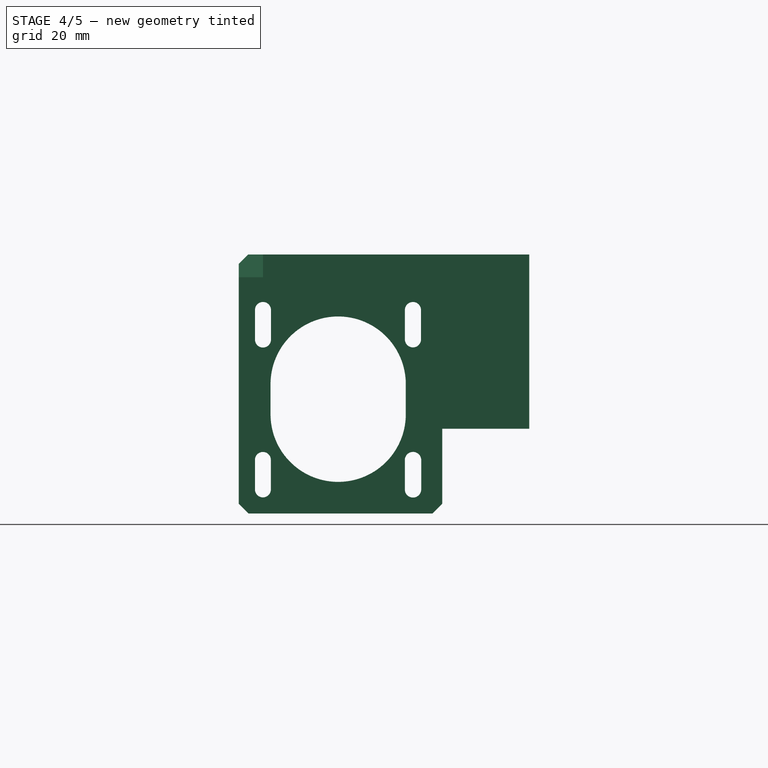
[diagram: stage 4 of 5 — right view after this stage's code; geometry added in this stage tinted green]
FEATURE [PartDesign::Pocket] Pocket005007
  BaseFeature = -> Pocket005006
  Direction = (0,2e-16,1)
  Length = 0.2
  Length2 = 5
  Profile = -> Pocket005006 [Face53,Face9]
  Type = 0
FEATURE [PartDesign::Pad] Pad007
  BaseFeature = -> Pocket005007
  Direction = (-3e-16,2e-16,1)
  Length = 0.2
  Length2 = 10
  Profile = -> Pocket005007 [Face51]
  Type = 0
FEATURE [PartDesign::Pocket] Pocket005008
  BaseFeature = -> Pad007
  Direction = (0,-2e-16,-1)
  Length = 0.2
  Length2 = 5
  Profile = -> Pad007 [Face78,Face113]
  Type = 0
FEATURE [PartDesign::Pad] Pad008
  BaseFeature = -> Pocket005008
  Direction = (3e-16,-2e-16,-1)
  Length = 0.2
  Length2 = 10
  Profile = -> Pocket005008 [Face88]
  Type = 0
FEATURE [PartDesign::Pocket] Pocket005009
  BaseFeature = -> Pad008
  Direction = (0,2e-16,1)
  Length = 0.2
  Length2 = 5
  Profile = -> Pad008 [Face26,Face64]
  Type = 0
FEATURE [PartDesign::Pocket] Pocket005010
  BaseFeature = -> Pocket005009
  Direction = (0,-2e-16,-1)
  Length = 0.2
  Length2 = 5
  Profile = -> Pocket005009 [Face144,Face120]
  Type = 0
FEATURE [PartDesign::Pad] Pad009
  BaseFeature = -> Pocket005010
  Direction = (-3e-16,2e-16,1)
  Length = 0.2
  Length2 = 10
  Profile = -> Pocket005010 [Face35]
  Type = 0
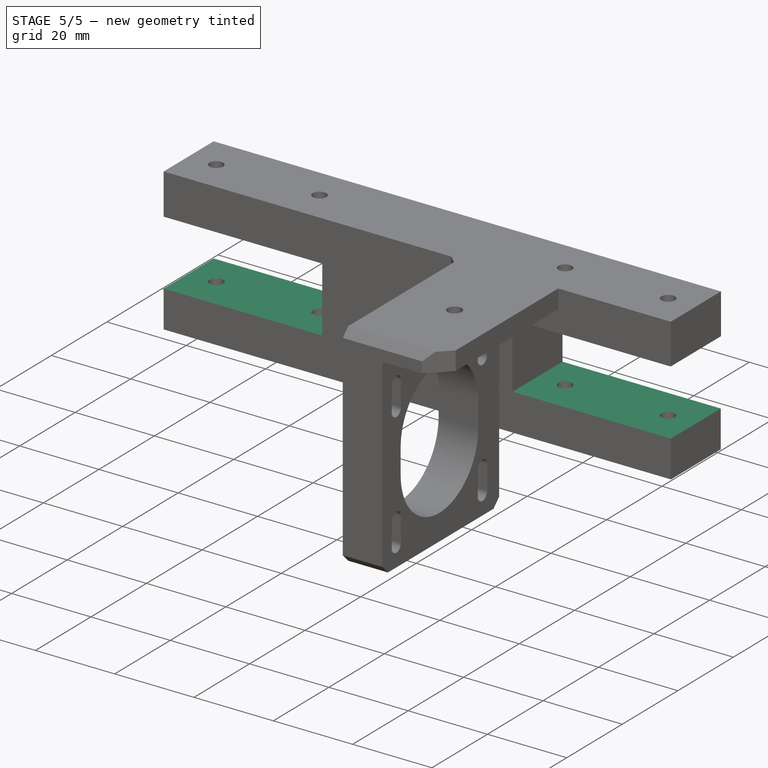
[diagram: stage 5 of 5 — iso view after this stage's code; geometry added in this stage tinted green]
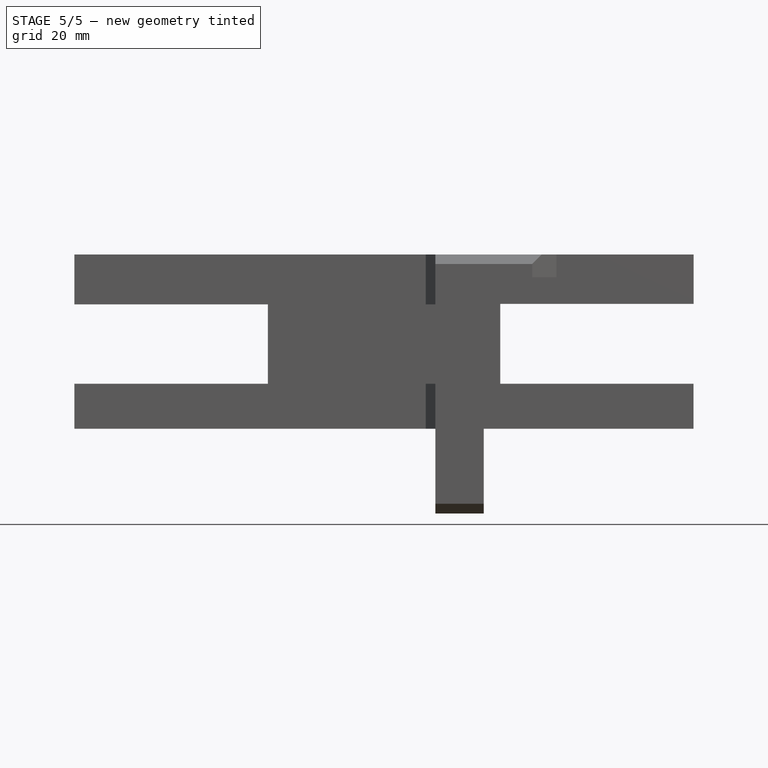
[diagram: stage 5 of 5 — front view after this stage's code; geometry added in this stage tinted green]
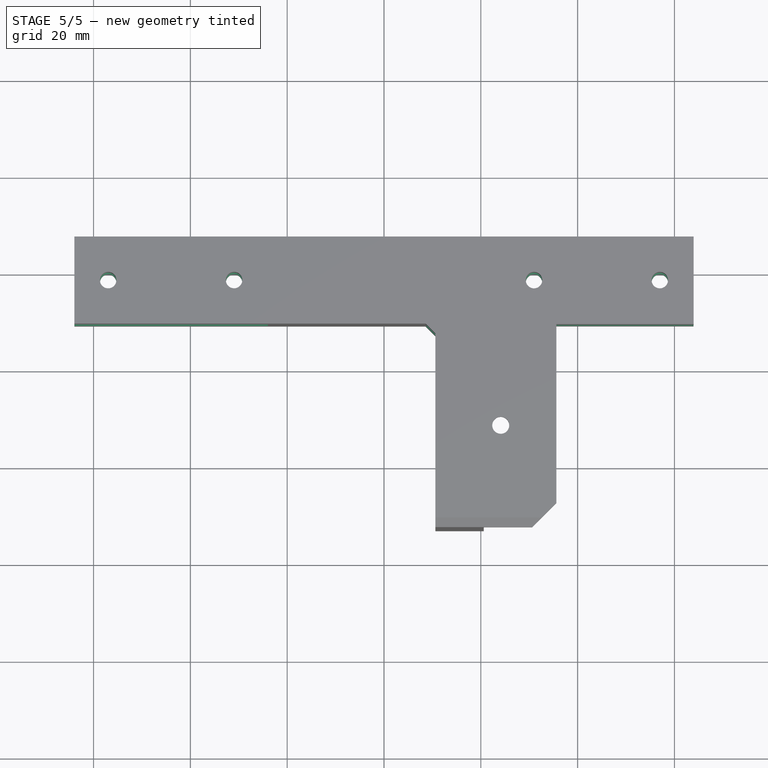
[diagram: stage 5 of 5 — top view after this stage's code; geometry added in this stage tinted green]
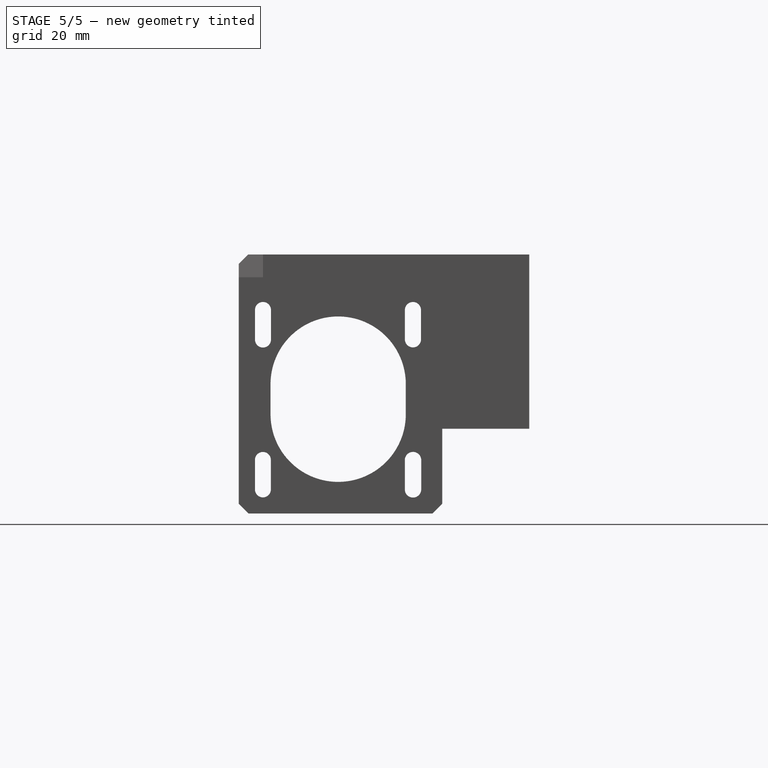
[diagram: stage 5 of 5 — right view after this stage's code; geometry added in this stage tinted green]
FEATURE [PartDesign::Pad] Pad010
  BaseFeature = -> Pad009
  Direction = (-3e-16,2e-16,1)
  Length = 10
  Length2 = 10
  Profile = -> Pad009 [Face29]
  Type = 0
FEATURE [PartDesign::Pocket] Pocket005011
  BaseFeature = -> Pad010
  Direction = (0,2e-16,1)
  Length = 0.5
  Length2 = 5
  Profile = -> Pad010 [Face28,Face54]
  Refine = true
  Type = 0
FEATURE [PartDesign::Pocket] Pocket005012
  BaseFeature = -> Pocket005011
  Direction = (-5e-16,7e-16,-1)
  Length = 0.5
  Length2 = 5
  Profile = -> Pocket005011 [Face113]
  Refine = true
  Type = 0
FEATURE [PartDesign::Pocket] Pocket005013
  BaseFeature = -> Pocket005012
  Direction = (0,0,1)
  Length = 0.5
  Length2 = 5
  Profile = -> Pocket005012 [Face73]
  Refine = true
  Type = 0
FEATURE [PartDesign::Pad] Pad011
  BaseFeature = -> Pocket005013
  Direction = (-3e-16,2e-16,1)
  Length = 10
  Length2 = 10
  Profile = -> Pocket005013 [Face74]
  Refine = true
  Type = 2
FEATURE [PartDesign::Pocket] Pocket005014
  BaseFeature = -> Pad011
  Direction = (0,0,-1)
  Length = 0.5
  Length2 = 5
  Profile = -> Pad011 [Face54]
  Refine = true
  Type = 0
FEATURE [PartDesign::Pad] Pad012
  BaseFeature = -> Pocket005014
  Direction = (3e-16,-2e-16,-1)
  Length = 10
  Length2 = 10
  Profile = -> Pocket005014 [Face75]
  Refine = true
  Type = 2
FEATURE [PartDesign::Body] Body
  Group = -> [Sketch,Sketch001,Pad,Pocket,Sketch002,Pocket001,Pocket002,Pocket003,Pocket004,Pocket005,Sketch003,Pocket006,Sketch004,Pocket007,Sketch005,Pocket008,Pad001,Pocket005002,Pocket005003,Pocket005004,Pad002,Pad003,Pad004,Pad005,Pad006,Sketch006,Pocket005005,Sketch007,Pocket005006,Pocket005007,Pad007,Pocket005008,Pad008,Pocket005009,Pocket005010,Pad009,Pad010,Pocket005011,Pocket005012,Pocket005013,+3 more]
  Origin = -> Origin
  Placement = pos=(506.46,45.8,-49.34) rot=(0,0,1;0rad)
  Tip = -> Pad012
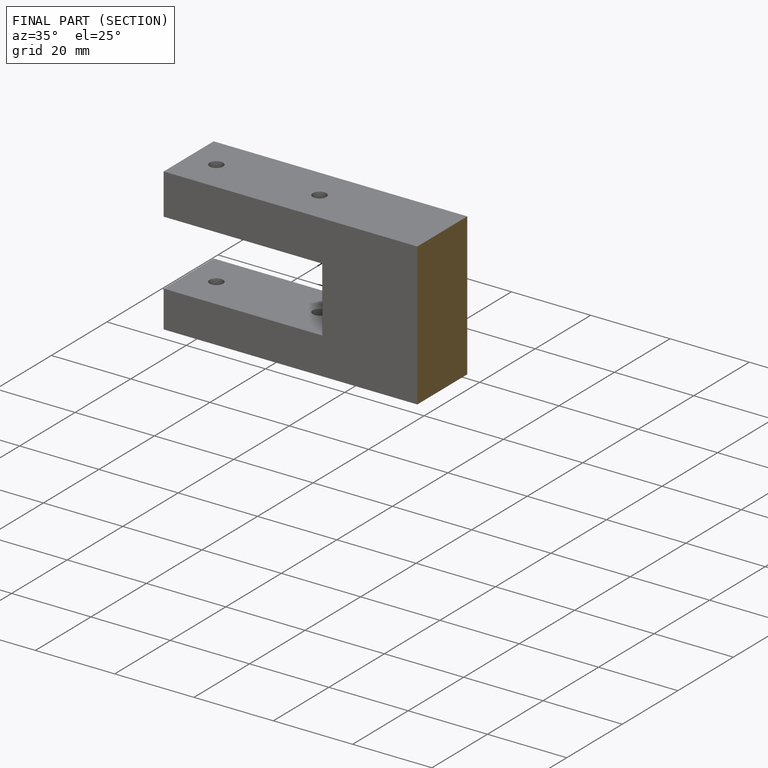
[diagram: finished part — half-section view (interior)]
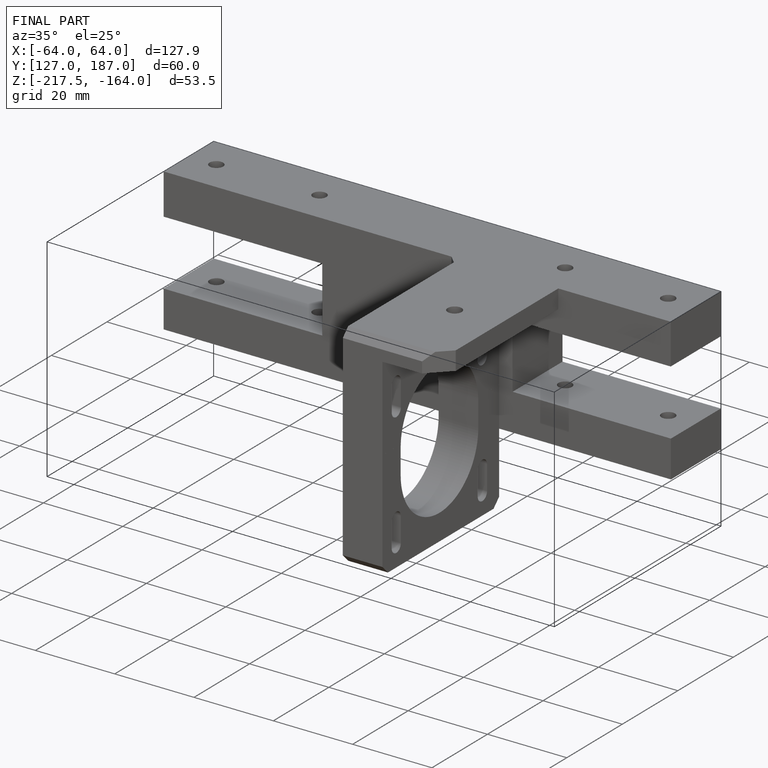
[diagram: finished part — iso view with bounding-box wireframe]
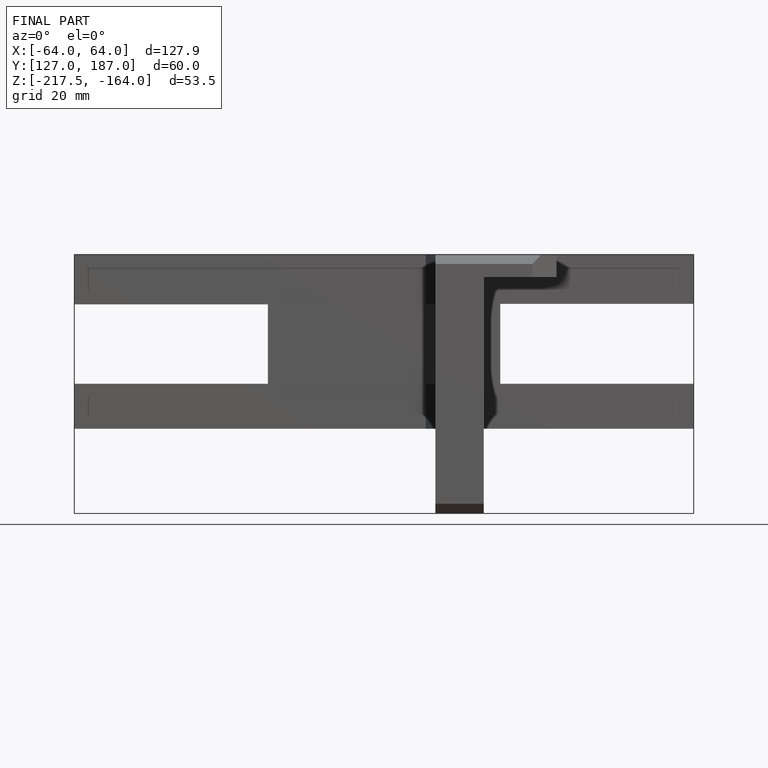
[diagram: finished part — front view with bounding-box wireframe]
